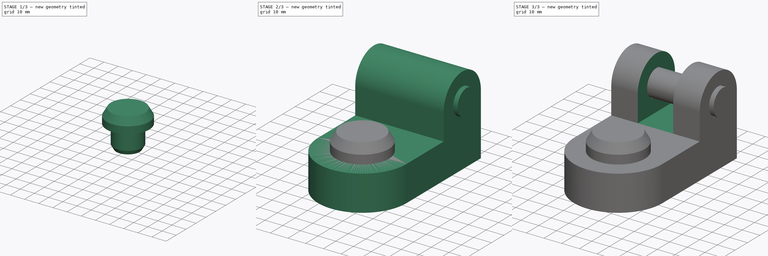
[diagram: build sequence overview — one tinted view per stage of 3, left to right]
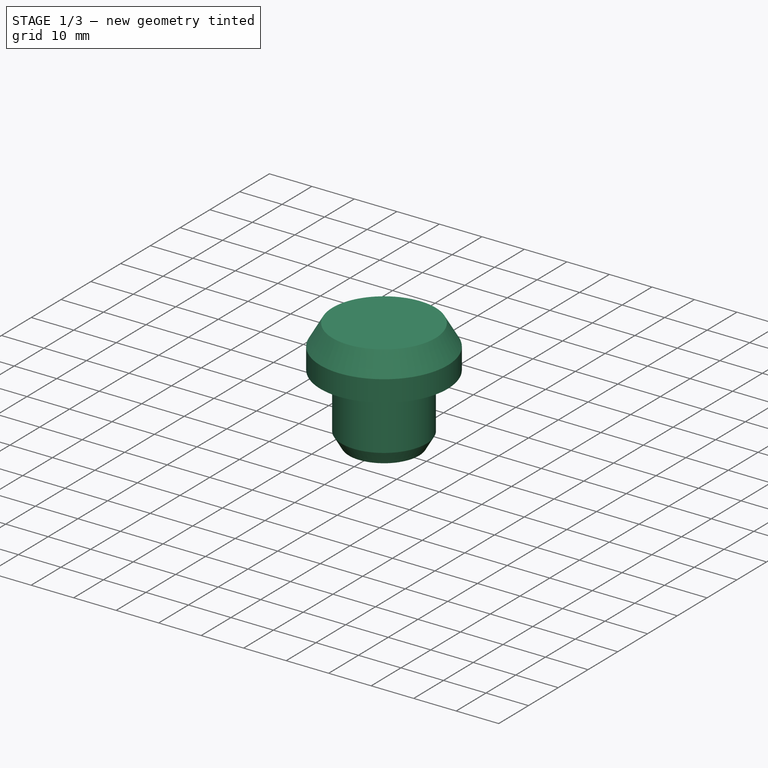
[diagram: stage 1 of 3 — iso view after this stage's code; geometry added in this stage tinted green]
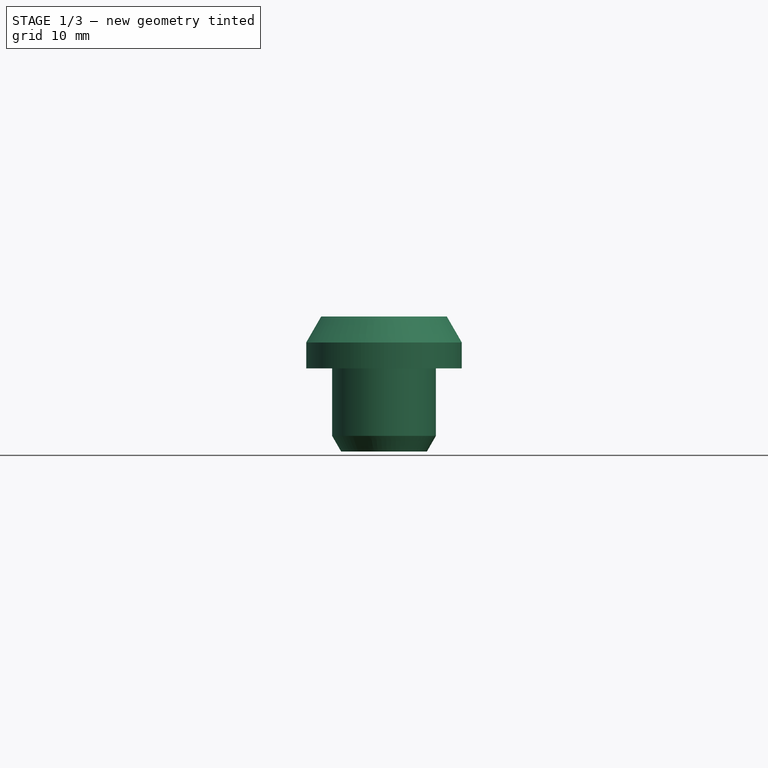
[diagram: stage 1 of 3 — front view after this stage's code; geometry added in this stage tinted green]
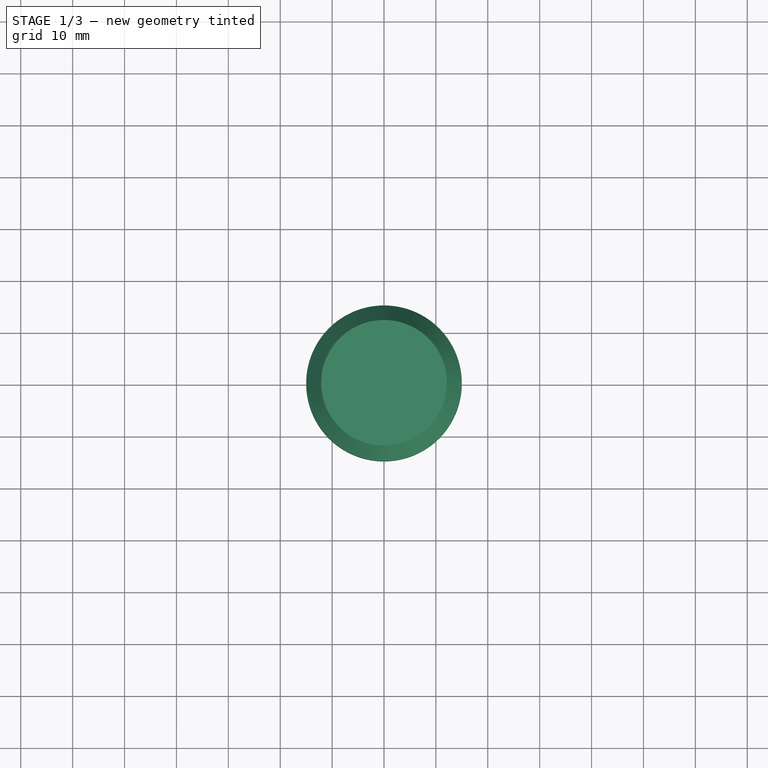
[diagram: stage 1 of 3 — top view after this stage's code; geometry added in this stage tinted green]
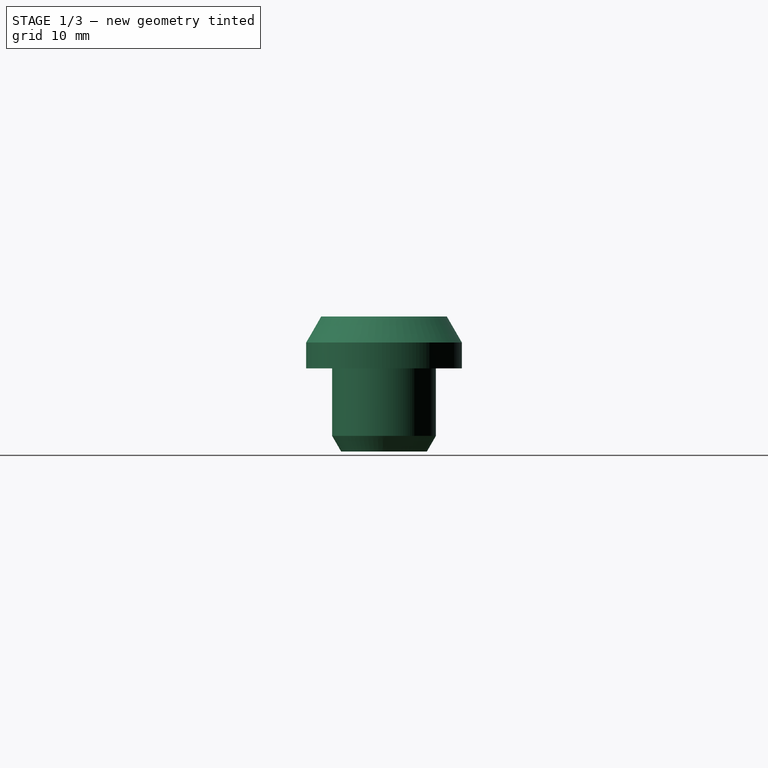
[diagram: stage 1 of 3 — right view after this stage's code; geometry added in this stage tinted green]
FCSTD DOCUMENT  (FreeCAD 0.20R29603 (Git))
Label: f2b_lasche
License: All rights reserved
LicenseURL: http://en.wikipedia.org/wiki/All_rights_reserved
objects: Sketcher::SketchObject×6, PartDesign::Pad×3, PartDesign::Body×3, PartDesign::Pocket×2, PartDesign::Revolution×1
note: 21 computed .brp shape members not serialized (recipe doc carries the construction recipe); baked Part::Feature solids carry a one-line shape summary decoded from their .brp

FEATURE [Sketcher::SketchObject] Sketch  label="sk_grundkoerper"
  FullyConstrained = true
  MapMode = 5
  Support = -> [XY_Plane]
  sketch-geometry (5):
    g0: LineSegment StartX=-25 StartY=-8e-15 StartZ=0 EndX=-25 EndY=60 EndZ=0
    g1: LineSegment StartX=-25 StartY=60 StartZ=0 EndX=25 EndY=60 EndZ=0
    g2: LineSegment StartX=25 StartY=60 StartZ=0 EndX=25 EndY=-7.1e-15 EndZ=0
    g3: ArcOfCircle CenterX=0 CenterY=0 CenterZ=0 NormalX=0 NormalY=0 NormalZ=1 AngleXU=0 Radius=25 StartAngle=3.14159 EndAngle=6.28319
    g4: Circle CenterX=0 CenterY=0 CenterZ=0 NormalX=0 NormalY=0 NormalZ=1 AngleXU=0 Radius=10
  constraints (12):
    c: Vertical(g0)
    c: Coincident(g0,g1)
    c: Horizontal(g1)
    c: Coincident(g1,g2)
    c: Vertical(g2)
    c: Coincident(g3,g-1)
    c: Tangent(g3,g0) = 1.5708
    c: Tangent(g3,g2) = 1.5708
    c: Radius(g3) = 25  'd_radius'
    c: DistanceY(g3,g1) = 60  'd_laenge'
    c: Coincident(g4,g3)
    c: Diameter(g4) = 20  'd_bohrung'
FEATURE [PartDesign::Pad] Pad  label="pad_grundkoerper"
  Direction = (0,0,1)
  Length = 20
  Length2 = 10
  Profile = -> Sketch
  ReferenceAxis = -> Sketch [N_Axis]
  Type = 0
FEATURE [PartDesign::Body] Body001  label="Bolzen"
  Group = -> [Sketch004,Pad002]
  Origin = -> Origin001
  Tip = -> Pad002
FEATURE [Sketcher::SketchObject] Sketch005
  FullyConstrained = true
  MapMode = 5
  Placement = pos=(0,0,0) rot=(0.57735,0.57735,0.57735;2.0944rad)
  Support = -> [YZ_Plane002]
  expr: .Constraints.d_radius_kopf = <<sk_grundkoerper>>.Constraints.d_bohrung / 2 + 5mm
  expr: .Constraints.d_radius_shaft = <<sk_grundkoerper>>.Constraints.d_bohrung / 2
  expr: Constraints[17] = <<pad_grundkoerper>>.Length
  sketch-geometry (8):
    g0: LineSegment StartX=0 StartY=30 StartZ=0 EndX=12.1132 EndY=30 EndZ=0
    g1: LineSegment StartX=12.1132 StartY=30 StartZ=0 EndX=15 EndY=25 EndZ=0
    g2: LineSegment StartX=15 StartY=25 StartZ=0 EndX=15 EndY=20 EndZ=0
    g3: LineSegment StartX=15 StartY=20 StartZ=0 EndX=10 EndY=20 EndZ=0
    g4: LineSegment StartX=10 StartY=20 StartZ=0 EndX=10 EndY=7 EndZ=0
    g5: LineSegment StartX=10 StartY=7 StartZ=0 EndX=8.26795 EndY=4 EndZ=0
    g6: LineSegment StartX=8.26795 StartY=4 StartZ=0 EndX=0 EndY=4 EndZ=0
    g7: LineSegment StartX=0 StartY=4 StartZ=0 EndX=0 EndY=30 EndZ=0
  constraints (24):
    c: Horizontal(g0)
    c: Coincident(g0,g1)
    c: Coincident(g1,g2)
    c: Vertical(g2)
    c: Coincident(g2,g3)
    c: Horizontal(g3)
    c: Coincident(g3,g4)
    c: Vertical(g4)
    c: Coincident(g4,g5)
    c: Coincident(g5,g6)
    c: PointOnObject(g6,g-2)
    c: Coincident(g6,g7)
    c: Vertical(g7)
    c: Coincident(g0,g7)
    c: Horizontal(g6)
    c: DistanceX(g-1,g2) = 15  'd_radius_kopf'
    c: DistanceX(g-1,g4) = 10  'd_radius_shaft'
    c: DistanceY(g-1,g2) = 20
    c: DistanceY(g7,g7) = 26  'd_laenge'
    c: DistanceY(g5,g4) = 3  'd_fase_unten'
    c: Angle(g4,g5) = 2.61799  'w_fase_unten'
    c: DistanceY(g1,g0) = 5  'd_fase_oben'
    c: Angle(g1,g2) = 2.61799  'w_fase_oben'
    c: DistanceY(g2,g0) = 10
FEATURE [PartDesign::Revolution] Revolution
  Angle = 360
  Axis = (-3e-16,3e-16,1)
  Base = (0,0,0)
  Placement = pos=(0,0,0) rot=(0.57735,0.57735,0.57735;2.0944rad)
  Profile = -> Sketch005
  ReferenceAxis = -> Z_Axis002
  Reversed = true
FEATURE [PartDesign::Body] Body002  label="Auflage"
  Group = -> [Sketch005,Revolution]
  Origin = -> Origin002
  Tip = -> Revolution
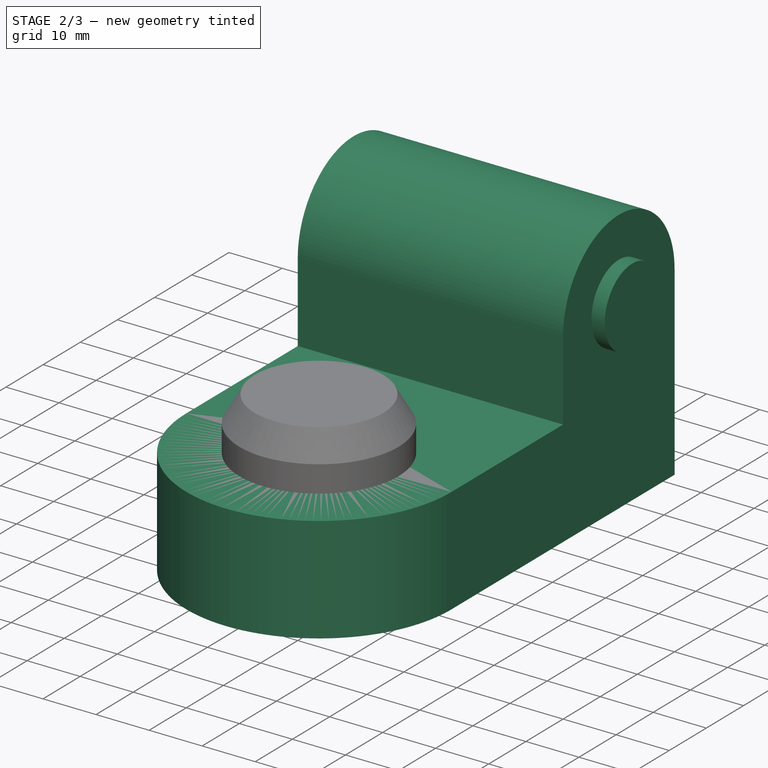
[diagram: stage 2 of 3 — iso view after this stage's code; geometry added in this stage tinted green]
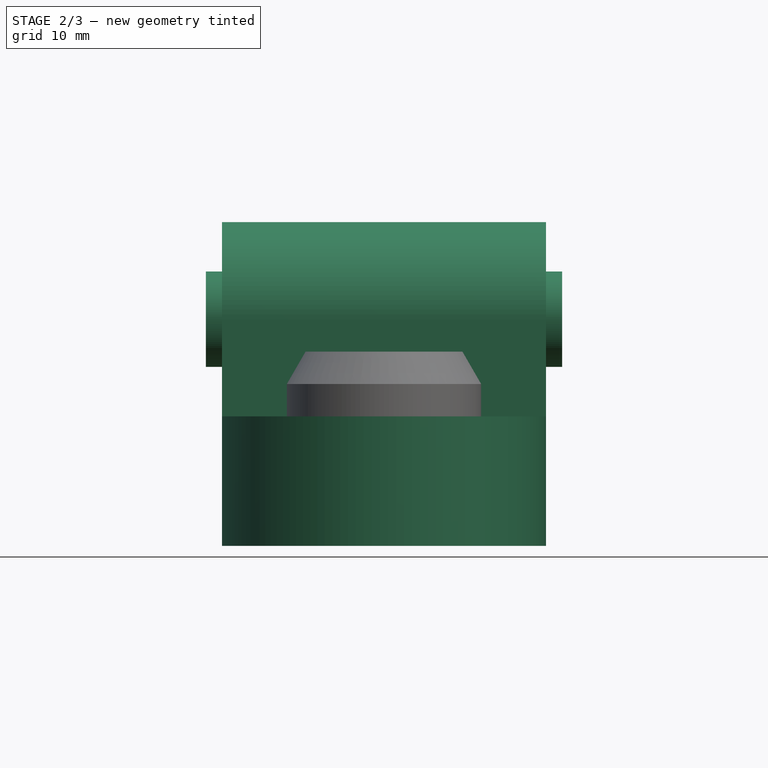
[diagram: stage 2 of 3 — front view after this stage's code; geometry added in this stage tinted green]
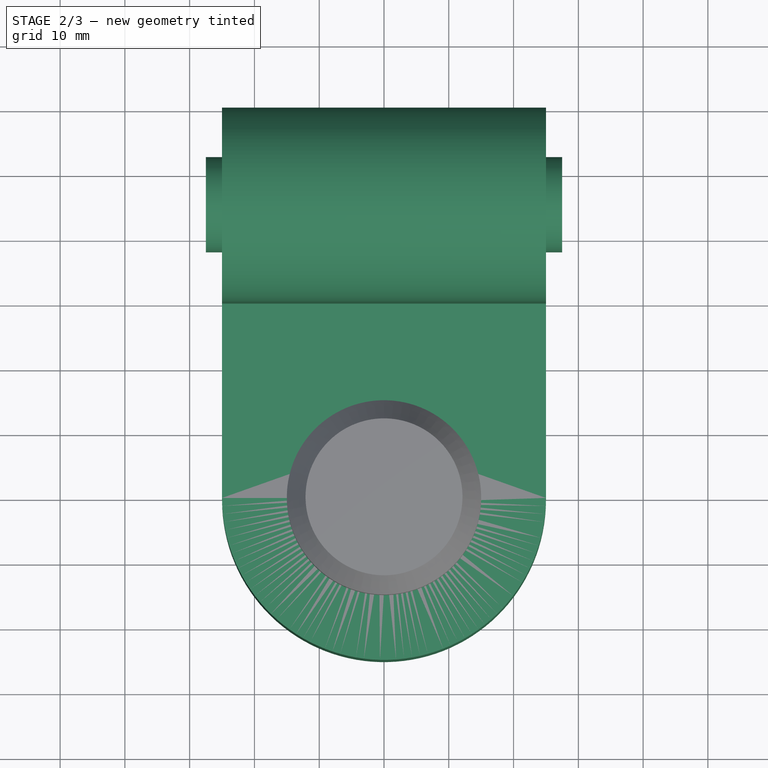
[diagram: stage 2 of 3 — top view after this stage's code; geometry added in this stage tinted green]
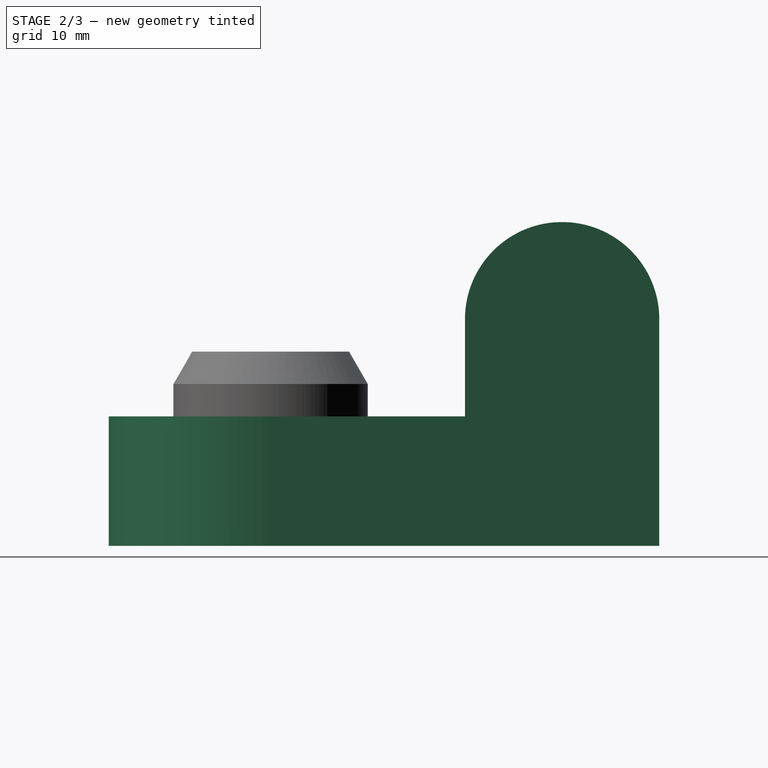
[diagram: stage 2 of 3 — right view after this stage's code; geometry added in this stage tinted green]
FEATURE [Sketcher::SketchObject] Sketch001  label="sk_oese"
  FullyConstrained = true
  MapMode = 5
  Placement = pos=(0,0,0) rot=(0.57735,0.57735,0.57735;2.0944rad)
  Support = -> [YZ_Plane]
  expr: Constraints[6] = <<pad_grundkoerper>>.Length
  expr: Constraints[7] = <<sk_grundkoerper>>.Constraints.d_laenge
  sketch-geometry (4):
    g0: LineSegment StartX=30 StartY=20 StartZ=0 EndX=30 EndY=35 EndZ=0
    g1: ArcOfCircle CenterX=45 CenterY=35 CenterZ=0 NormalX=0 NormalY=0 NormalZ=1 AngleXU=0 Radius=15 StartAngle=2e-16 EndAngle=3.14159
    g2: LineSegment StartX=60 StartY=35 StartZ=0 EndX=60 EndY=20 EndZ=0
    g3: LineSegment StartX=60 StartY=20 StartZ=0 EndX=30 EndY=20 EndZ=0
  constraints (11):
    c: Vertical(g0)
    c: Tangent(g0,g1) = 1.5708
    c: Tangent(g1,g2) = 1.5708
    c: Coincident(g2,g3)
    c: Coincident(g3,g0)
    c: Horizontal(g3)
    c: DistanceY(g-1,g0) = 20
    c: DistanceX(g-1,g2) = 60
    c: Vertical(g2)
    c: Radius(g1) = 15  'd_radius'
    c: DistanceY(g2,g1) = 15  'd_hoehe'
FEATURE [PartDesign::Pad] Pad001  label="pad_oese"
  BaseFeature = -> Pad
  Direction = (1,-2e-16,3e-16)
  Length = 50
  Length2 = 10
  Midplane = true
  Profile = -> Sketch001
  ReferenceAxis = -> Sketch001 [N_Axis]
  Type = 0
  expr: Length = <<sk_grundkoerper>>.Constraints.d_radius * 2
FEATURE [PartDesign::Body] Body  label="Lasche"
  Group = -> [Sketch,Pad,Sketch001,Pad001,Sketch002,Pocket,Sketch003,Pocket001]
  Origin = -> Origin
  Tip = -> Pocket001
FEATURE [Sketcher::SketchObject] Sketch004  label="sk_bolzen"
  FullyConstrained = false
  MapMode = 5
  Placement = pos=(0,0,0) rot=(0.57735,0.57735,0.57735;2.0944rad)
  Support = -> [YZ_Plane001]
  expr: Constraints[0] = <<sk_bohrung>>.Constraints.d_mp_x
  expr: Constraints[1] = <<sk_bohrung>>.Constraints.d_mp_y
  sketch-geometry (1):
    g0: Circle CenterX=45 CenterY=35 CenterZ=0 NormalX=0 NormalY=0 NormalZ=1 AngleXU=0 Radius=7.35821
  constraints (2):
    c: DistanceX(g-1,g0) = 45
    c: DistanceY(g-1,g0) = 35
FEATURE [PartDesign::Pad] Pad002  label="Pad_Bolzen"
  Direction = (1,-2e-16,3e-16)
  Length = 55
  Length2 = 10
  Midplane = true
  Placement = pos=(0,0,0) rot=(0.57735,0.57735,0.57735;2.0944rad)
  Profile = -> Sketch004
  ReferenceAxis = -> Sketch004 [N_Axis]
  Type = 0
  expr: Length = <<sk_grundkoerper>>.Constraints.d_radius * 2 + 5mm
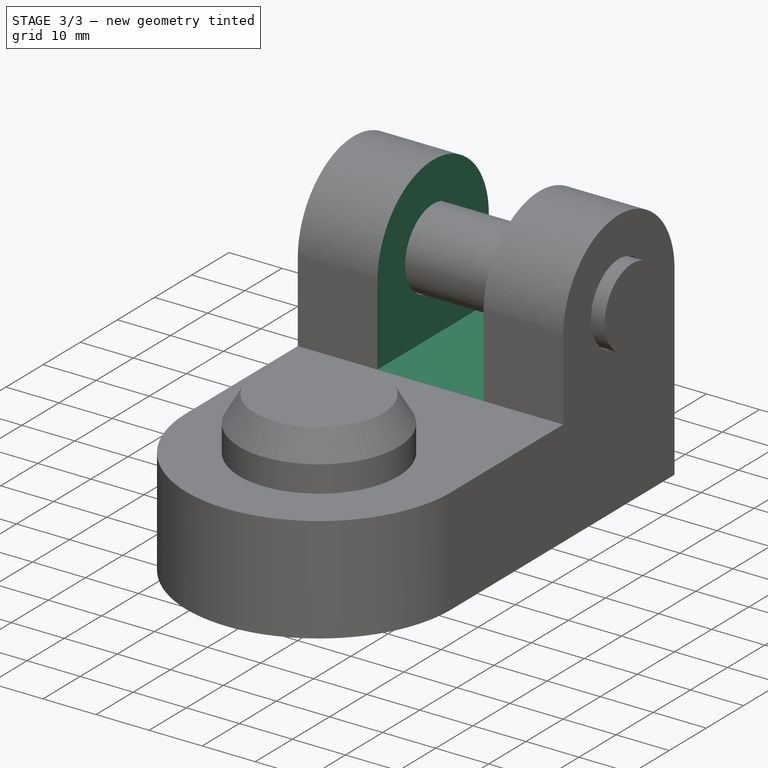
[diagram: stage 3 of 3 — iso view after this stage's code; geometry added in this stage tinted green]
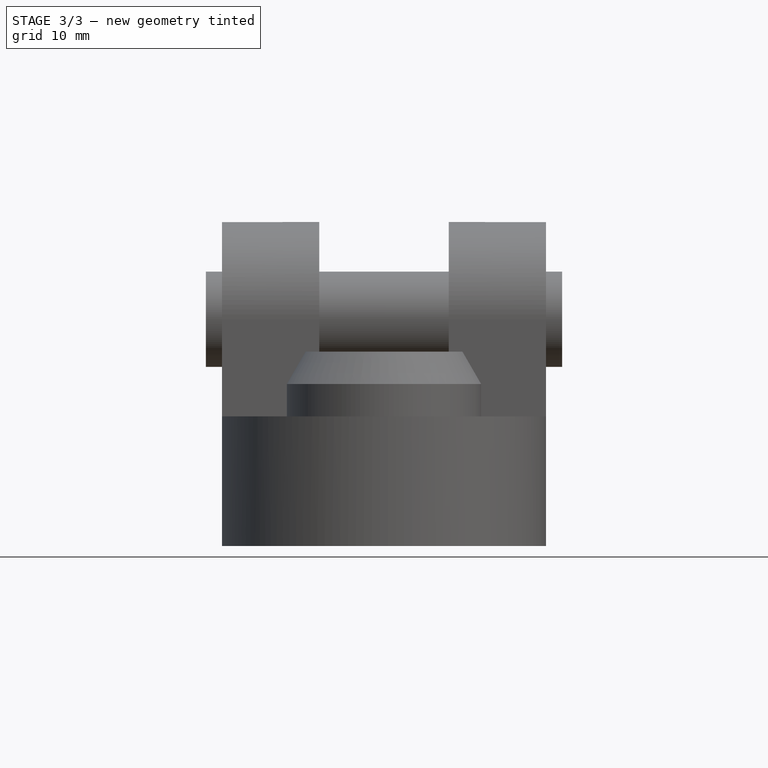
[diagram: stage 3 of 3 — front view after this stage's code; geometry added in this stage tinted green]
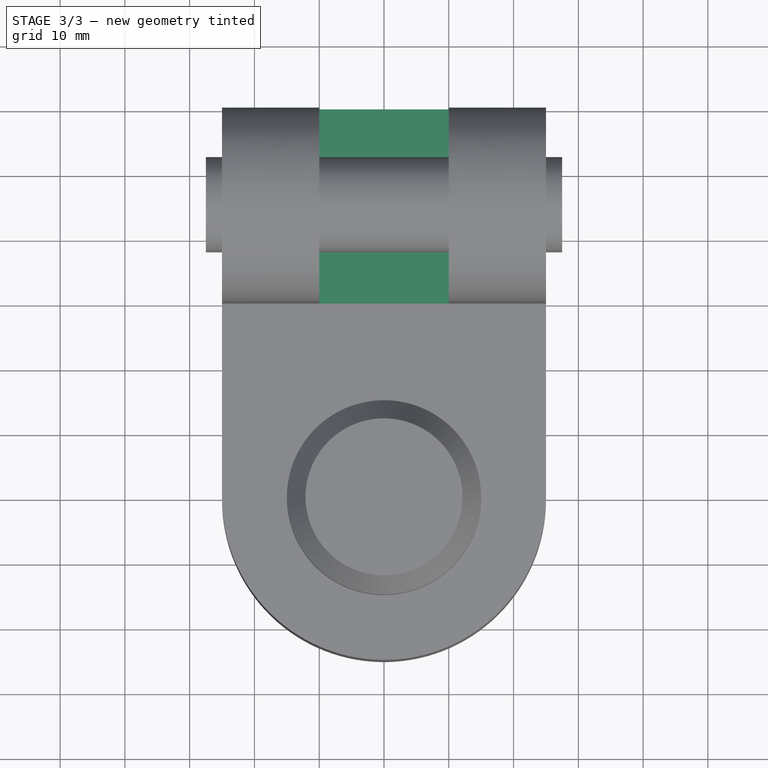
[diagram: stage 3 of 3 — top view after this stage's code; geometry added in this stage tinted green]
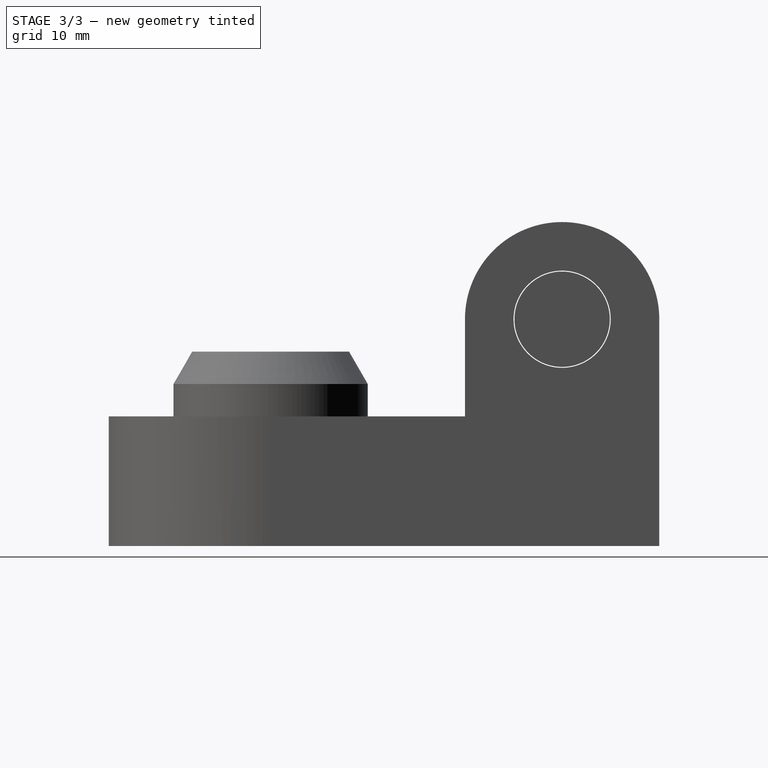
[diagram: stage 3 of 3 — right view after this stage's code; geometry added in this stage tinted green]
FEATURE [Sketcher::SketchObject] Sketch002  label="sk_freimachung"
  AttachmentOffset = pos=(0,0,-60) rot=(0,0,1;0rad)
  FullyConstrained = true
  MapMode = 5
  Placement = pos=(0,60,1.33e-14) rot=(1,0,0;1.5708rad)
  Support = -> [XZ_Plane]
  expr: .AttachmentOffset.Base.z = -1 * <<sk_grundkoerper>>.Constraints.d_laenge
  expr: Constraints[10] = <<pad_grundkoerper>>.Length + <<sk_oese>>.Constraints.d_hoehe + <<sk_oese>>.Constraints.d_radius
  expr: Constraints[11] = .Constraints.d_breite / 2
  expr: Constraints[8] = <<pad_grundkoerper>>.Length
  sketch-geometry (4):
    g0: LineSegment StartX=-10 StartY=50 StartZ=0 EndX=10 EndY=50 EndZ=0
    g1: LineSegment StartX=10 StartY=50 StartZ=0 EndX=10 EndY=20 EndZ=0
    g2: LineSegment StartX=10 StartY=20 StartZ=0 EndX=-10 EndY=20 EndZ=0
    g3: LineSegment StartX=-10 StartY=20 StartZ=0 EndX=-10 EndY=50 EndZ=0
  constraints (12):
    c: Coincident(g0,g1)
    c: Coincident(g1,g2)
    c: Coincident(g2,g3)
    c: Coincident(g3,g0)
    c: Horizontal(g0)
    c: Horizontal(g2)
    c: Vertical(g1)
    c: Vertical(g3)
    c: DistanceY(g-1,g1) = 20
    c: DistanceX(g0,g0) = 20  'd_breite'
    c: DistanceY(g-1,g0) = 50
    c: DistanceX(g2,g-1) = 10
FEATURE [PartDesign::Pocket] Pocket  label="Pocket_Freimachung"
  BaseFeature = -> Pad001
  Direction = (0,1,-2e-16)
  Length = 5
  Length2 = 5
  Profile = -> Sketch002
  ReferenceAxis = -> Sketch002 [N_Axis]
  Reversed = true
  Type = 1
FEATURE [Sketcher::SketchObject] Sketch003  label="sk_bohrung"
  FullyConstrained = true
  MapMode = 5
  Placement = pos=(0,0,0) rot=(0.57735,0.57735,0.57735;2.0944rad)
  Support = -> [YZ_Plane]
  expr: .Constraints.d_mp_x = <<sk_grundkoerper>>.Constraints.d_laenge - <<sk_oese>>.Constraints.d_radius
  expr: .Constraints.d_mp_y = <<pad_grundkoerper>>.Length + <<sk_oese>>.Constraints.d_hoehe
  sketch-geometry (1):
    g0: Circle CenterX=45 CenterY=35 CenterZ=0 NormalX=0 NormalY=0 NormalZ=1 AngleXU=0 Radius=7.5
  constraints (3):
    c: Diameter(g0) = 15  'd_dmr'
    c: DistanceX(g-1,g0) = 45  'd_mp_x'
    c: DistanceY(g-1,g0) = 35  'd_mp_y'
FEATURE [PartDesign::Pocket] Pocket001  label="Pocket_bohrung"
  BaseFeature = -> Pocket
  Direction = (-1,2e-16,-3e-16)
  Length = 5
  Length2 = 5
  Midplane = true
  Profile = -> Sketch003
  ReferenceAxis = -> Sketch003 [N_Axis]
  Type = 1
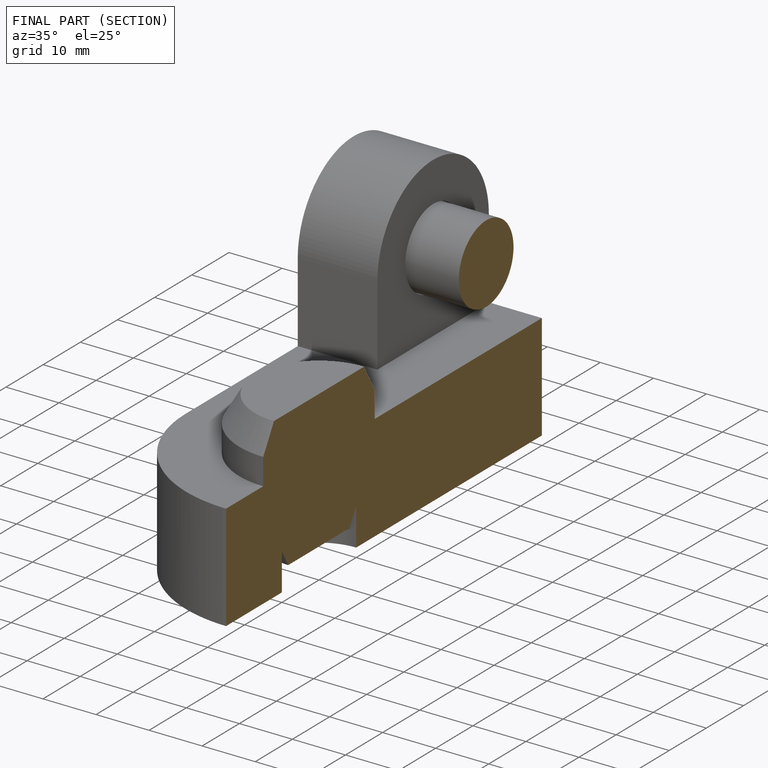
[diagram: finished part — half-section view (interior)]
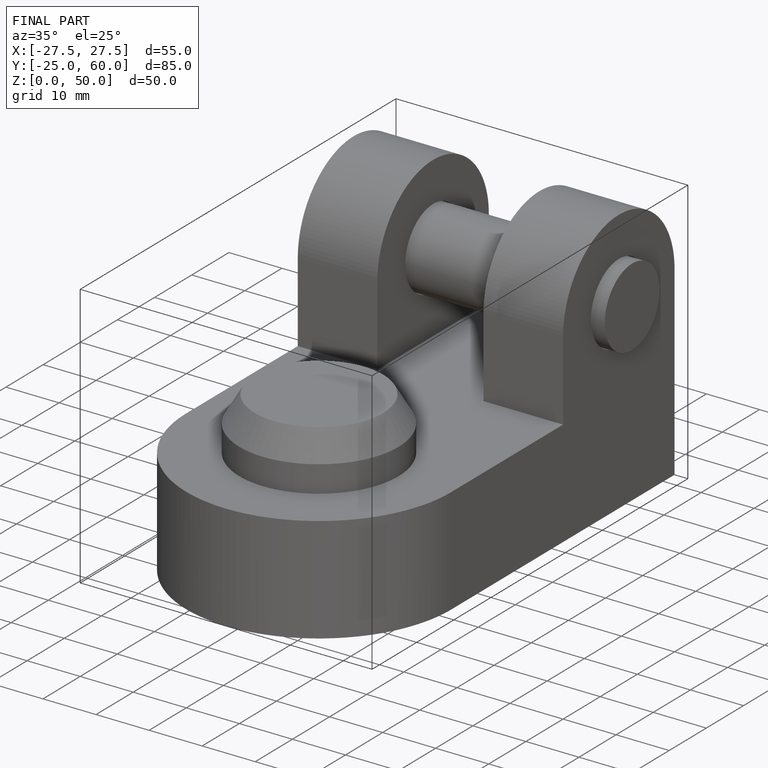
[diagram: finished part — iso view with bounding-box wireframe]
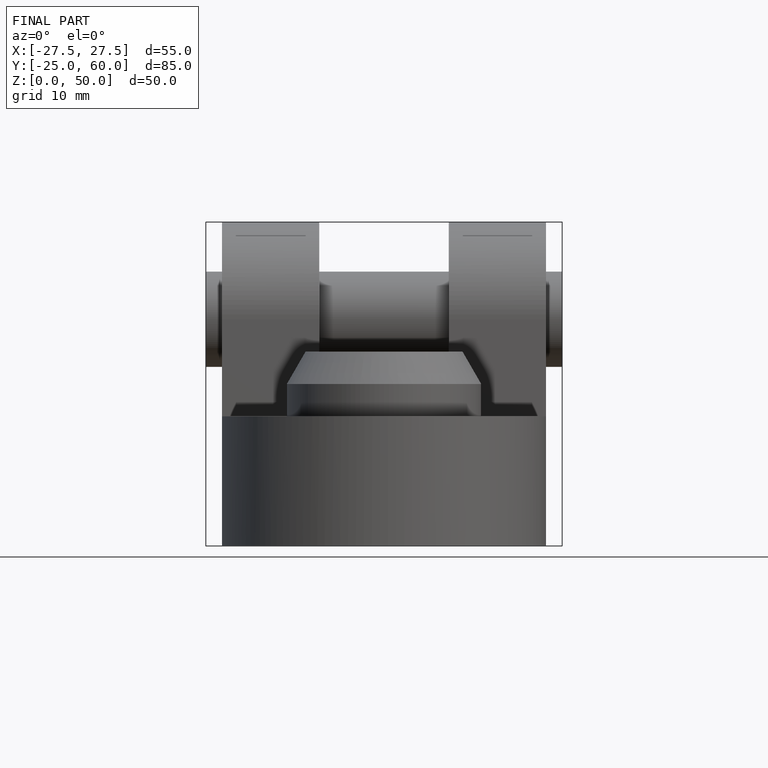
[diagram: finished part — front view with bounding-box wireframe]
